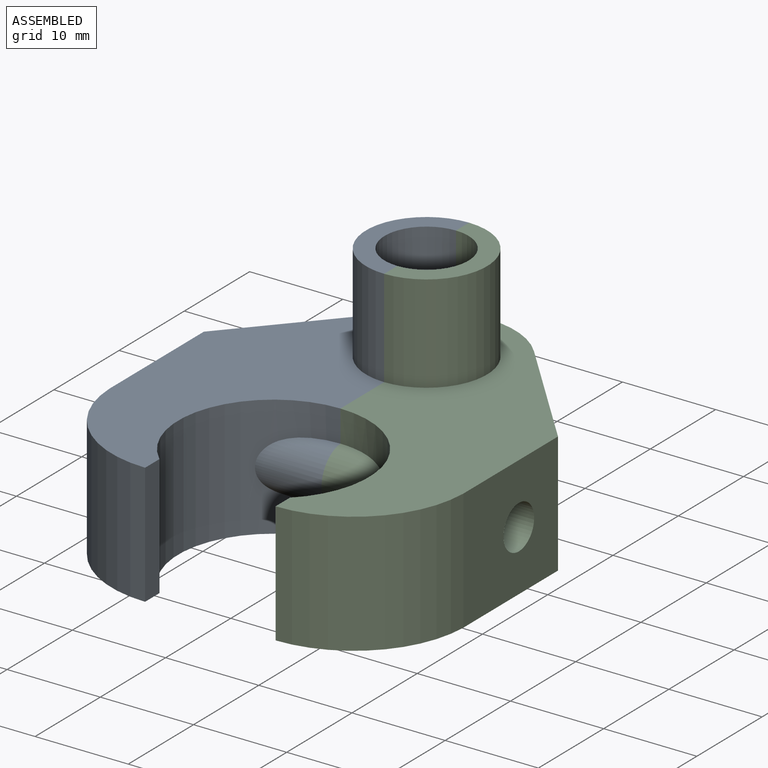
[diagram: assembled view]
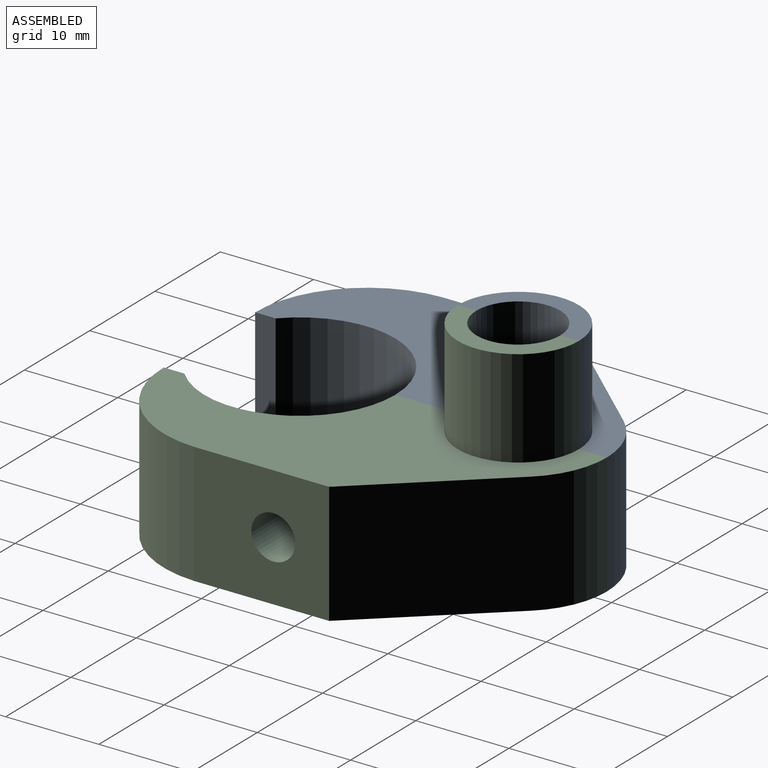
[diagram: assembled view, second angle]
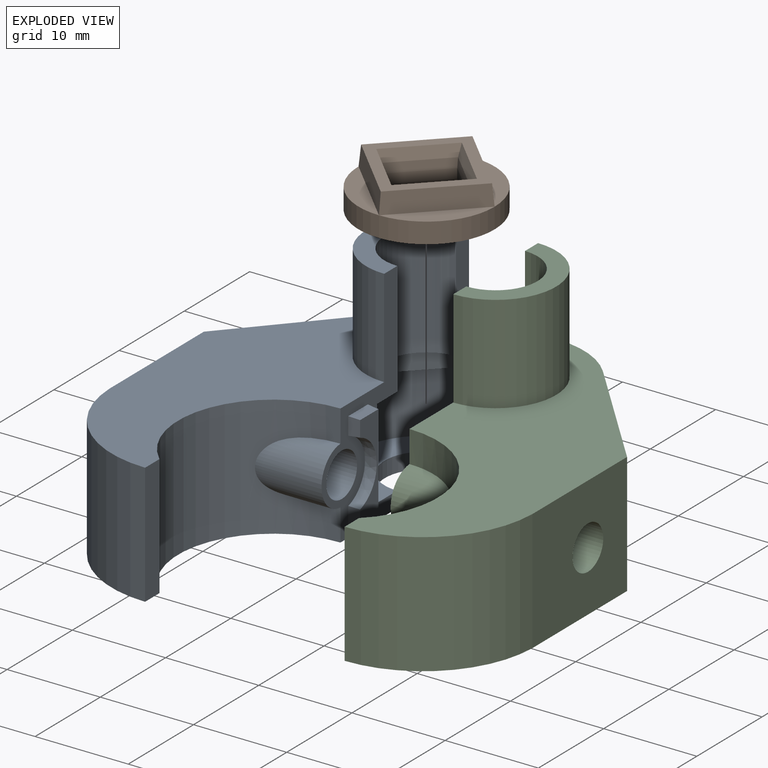
[diagram: exploded view]
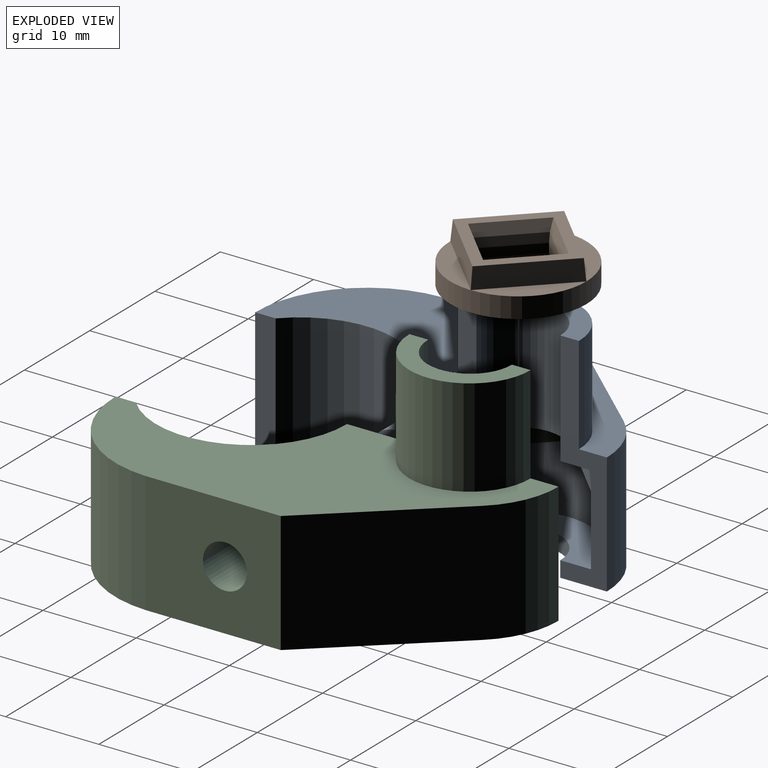
[diagram: exploded view, second angle]
ASSEMBLY  parts=3 mates=2
PART A: 37 faces, bbox 20.2x42.6x23.5 mm
  f0: plane 23.5x11.6mm, normal (1,0,0), area 80.1mm2, adj f1,f3,f15,f16,f17,f18,f20,f21
  f1: plane 7.8x7.8mm, normal (0.7,0.7,-0.09), area 24.1mm2, adj f0,f2,f22,f24,f25
  f2: plane 7.8x7.8mm, normal (0.7,-0.7,-0.09), area 24.1mm2, adj f1,f22,f24,f26,f29
  f3: cylinder r=4.5mm len=9mm, axis (0,0,-1), area 24mm2, adj f0,f18,f23,f29
  f4: plane 12x1.75mm, normal (0,-0.5,0.87), area 24.2mm2, adj f5,f9,f12,f19
  f5: plane 12x2.02mm, normal (0,-1,0), area 24.2mm2, adj f4,f6,f12,f19
  f6: plane 12x1.75mm, normal (0,-0.5,-0.87), area 24.2mm2, adj f5,f7,f12,f19
  f7: plane 12x1.75mm, normal (0,0.5,-0.87), area 24.2mm2, adj f6,f8,f12,f19
  f8: plane 12x2.02mm, normal (0,1,0), area 24.2mm2, adj f7,f9,f12,f19
  f9: plane 12x1.75mm, normal (0,0.5,0.87), area 24.2mm2, adj f4,f8,f12,f19
  f10: cylinder r=9.5mm len=13mm, axis (0,0,-1), area 103.9mm2, adj f11,f17,f18,f29
  f11: plane 13.33x13mm, normal (-0.75,0.67,0), area 232.5mm2, adj f10,f12,f17,f18
  f12: plane 14.5x13mm, normal (-1,0,0), area 177.9mm2, adj f4,f5,f6,f7,f8,f9,f11,f13
  f13: cylinder r=12.01mm len=13mm, axis (0,0,-1), area 240.4mm2, adj f12,f14,f17,f18
  f14: plane 13x2.2mm, normal (1,0,0), area 28.6mm2, adj f13,f15,f17,f18
  f15: cylinder r=10.25mm len=17.74mm, axis (0,0,-1), area 276.4mm2, adj f0,f14,f17,f18,f21
  f16: cylinder r=4.5mm len=12.2mm, axis (0,0,-1), area 172.5mm2, adj f0,f24,f28,f29
  f17: plane 42.64x19mm, normal (0,0,1), area 421.6mm2, adj f0,f10,f11,f12,f13,f14,f15,f27
  f18: plane 42.64x19mm, normal (0,0,-1), area 456.2mm2, adj f0,f3,f10,f11,f12,f13,f14,f15
  f19: plane 4.7x4.7mm, normal (1,0,0), area 6.7mm2, adj f4,f5,f6,f7,f8,f9,f20
  f20: cylinder r=2.35mm len=7mm, axis (1,0,0), area 103.4mm2, adj f0,f19
  f21: cylinder r=3.1mm len=7.15mm, axis (1,0,0), area 52.1mm2, adj f0,f15
  f22: cylinder r=7.8mm len=15.6mm, axis (0,0,1), area 181.4mm2, adj f0,f1,f2,f23,f25,f26,f29
  f23: plane 15.6x7.8mm, normal (0,0,1), area 63.8mm2, adj f0,f3,f22,f29
  f24: plane 15.2x7.6mm, normal (0,0,-1), area 26mm2, adj f0,f1,f2,f16,f29
  f25: plane 7.73x7.73mm, normal (0,0,-1), area 16.8mm2, adj f1,f22
  f26: plane 7.73x7.73mm, normal (0,0,-1), area 16.8mm2, adj f2,f22
  f27: cylinder r=6.5mm len=13mm, axis (0,0,-1), area 214.4mm2, adj f0,f17,f28,f29
  f28: plane 13x6.5mm, normal (0,0,1), area 34.6mm2, adj f0,f16,f27,f29
  f29: plane 23.5x5mm, normal (1,0,0), area 54.5mm2, adj f2,f3,f10,f16,f17,f18,f22,f23
  f30: plane 3x1.2mm, normal (0.09,0,1), area 3.5mm2, adj f0,f31,f35,f36
  f31: plane 1.89x1.2mm, normal (0.09,-1,0), area 2.2mm2, adj f0,f30,f32,f36
  f32: cone r=3.55mm half-angle=5deg, axis (1,0,0), area 11.1mm2, adj f0,f31,f33,f36
  f33: plane 1.89x1.2mm, normal (0.09,-1,0), area 2.2mm2, adj f0,f32,f34,f36
  f34: plane 3x1.2mm, normal (0.09,0,-1), area 3.5mm2, adj f0,f33,f35,f36
  f35: plane 10.6x1.2mm, normal (0.09,1,0), area 12.6mm2, adj f0,f30,f34,f36
  f36: plane 10.39x2.79mm, normal (1,0,0), area 16mm2, adj f30,f31,f32,f33,f34,f35
PART B: 27 faces, bbox 14.6x14.6x4.4 mm
  f0: plane 7.3x7.3mm, normal (0.7,0.7,0.09), area 22.4mm2, adj f1,f7,f8,f9
  f1: plane 7.3x7.3mm, normal (-0.7,0.7,0.09), area 22.4mm2, adj f0,f2,f8,f12
  f2: plane 7.3x7.3mm, normal (-0.7,-0.7,0.09), area 22.4mm2, adj f1,f7,f8,f11
  f3: plane 4.83x4.83mm, normal (0.7,-0.7,0.09), area 6.8mm2, adj f4,f6,f14,f20
  f4: plane 4.83x4.83mm, normal (-0.7,-0.7,0.09), area 6.8mm2, adj f3,f5,f13,f19
  f5: plane 4.83x4.83mm, normal (-0.7,0.7,0.09), area 6.8mm2, adj f4,f6,f17,f21
  f6: plane 4.83x4.83mm, normal (0.7,0.7,0.09), area 6.8mm2, adj f3,f5,f15,f22
  f7: plane 7.3x7.3mm, normal (0.7,-0.7,0.09), area 22.4mm2, adj f0,f2,f8,f10
  f8: plane 14.06x14.06mm, normal (0,0,1), area 40.5mm2, adj f0,f1,f2,f7,f19,f20,f21,f22
  f9: plane 7.3x7.3mm, normal (0,0,1), area 15.2mm2, adj f0,f16
  f10: plane 7.3x7.3mm, normal (0,0,1), area 15.2mm2, adj f7,f16
  f11: plane 7.3x7.3mm, normal (0,0,1), area 15.2mm2, adj f2,f16
  f12: plane 7.3x7.3mm, normal (0,0,1), area 15.2mm2, adj f1,f16
  f13: plane 4.7x4.7mm, normal (-0.71,-0.71,0), area 6.6mm2, adj f4,f14,f17,f25
  f14: plane 4.7x4.7mm, normal (0.71,-0.71,0), area 6.6mm2, adj f3,f13,f15,f23
  f15: plane 4.7x4.7mm, normal (0.71,0.71,0), area 6.6mm2, adj f6,f14,f17,f24
  f16: cylinder r=7.3mm len=14.6mm, axis (0,0,1), area 100.9mm2, adj f9,f10,f11,f12,f18
  f17: plane 4.7x4.7mm, normal (-0.71,0.71,0), area 6.6mm2, adj f5,f13,f15,f26
  f18: plane 14.6x14.6mm, normal (0,0,-1), area 114.9mm2, adj f16,f23,f24,f25,f26
  f19: plane 5.4x5.4mm, normal (-0.67,-0.67,0.32), area 9.1mm2, adj f4,f8,f20,f21
  f20: plane 5.4x5.4mm, normal (0.67,-0.67,0.32), area 9.1mm2, adj f3,f8,f19,f22
  f21: plane 5.4x5.4mm, normal (-0.67,0.67,0.32), area 9.1mm2, adj f5,f8,f19,f22
  f22: plane 5.4x5.4mm, normal (0.67,0.67,0.32), area 9.1mm2, adj f6,f8,f20,f21
  f23: plane 5.13x5.13mm, normal (0.69,-0.69,-0.24), area 8.6mm2, adj f14,f18,f24,f25
  f24: plane 5.13x5.13mm, normal (0.69,0.69,-0.24), area 8.6mm2, adj f15,f18,f23,f26
  f25: plane 5.13x5.13mm, normal (-0.69,-0.69,-0.24), area 8.6mm2, adj f13,f18,f23,f26
  f26: plane 5.13x5.13mm, normal (-0.69,0.69,-0.24), area 8.6mm2, adj f17,f18,f24,f25
PART C: 30 faces, bbox 19x42.6x23.5 mm
  f0: plane 23.5x11.6mm, normal (-1,0,0), area 74mm2, adj f1,f3,f4,f5,f6,f7,f8,f9
  f1: cylinder r=4.5mm len=9mm, axis (0,0,-1), area 24mm2, adj f0,f6,f10,f22
  f2: cylinder r=9.5mm len=13mm, axis (0,0,-1), area 103.9mm2, adj f5,f6,f19,f22
  f3: cylinder r=10.25mm len=17.74mm, axis (0,0,-1), area 276.4mm2, adj f0,f5,f6,f8,f16
  f4: cylinder r=4.5mm len=12.2mm, axis (0,0,-1), area 172.5mm2, adj f0,f11,f13,f22
  f5: plane 42.64x19mm, normal (0,0,1), area 421.6mm2, adj f0,f2,f3,f12,f16,f17,f18,f19
  f6: plane 42.64x19mm, normal (0,0,-1), area 456.2mm2, adj f0,f1,f2,f3,f16,f17,f18,f19
  f7: cylinder r=2.35mm len=19mm, axis (1,0,0), area 280.5mm2, adj f0,f18
  f8: cylinder r=3.1mm len=7.15mm, axis (1,0,0), area 52.1mm2, adj f0,f3
  f9: cylinder r=7.8mm len=15.6mm, axis (0,0,1), area 181.4mm2, adj f0,f10,f14,f15,f20,f21,f22
  f10: plane 15.6x7.8mm, normal (0,0,1), area 63.8mm2, adj f0,f1,f9,f22
  f11: plane 15.2x7.6mm, normal (0,0,-1), area 26mm2, adj f0,f4,f14,f15,f22
  f12: cylinder r=6.5mm len=13mm, axis (0,0,-1), area 214.4mm2, adj f0,f5,f13,f22
  f13: plane 13x6.5mm, normal (0,0,1), area 34.6mm2, adj f0,f4,f12,f22
  f14: plane 7.8x7.8mm, normal (-0.7,0.7,-0.09), area 24.1mm2, adj f0,f9,f11,f15,f20
  f15: plane 7.8x7.8mm, normal (-0.7,-0.7,-0.09), area 24.1mm2, adj f9,f11,f14,f21,f22
  f16: plane 13x2.2mm, normal (-1,0,0), area 28.6mm2, adj f3,f5,f6,f17
  f17: cylinder r=12.01mm len=13mm, axis (0,0,-1), area 240.4mm2, adj f5,f6,f16,f18
  f18: plane 14.5x13mm, normal (1,0,0), area 171.2mm2, adj f5,f6,f7,f17,f19
  f19: plane 13.33x13mm, normal (0.75,0.67,0), area 232.5mm2, adj f2,f5,f6,f18
  f20: plane 7.73x7.73mm, normal (0,0,-1), area 16.8mm2, adj f9,f14
  f21: plane 7.73x7.73mm, normal (0,0,-1), area 16.8mm2, adj f9,f15
  f22: plane 23.5x5mm, normal (-1,0,0), area 54.5mm2, adj f1,f2,f4,f5,f6,f9,f10,f11
  f23: plane 2.25x1.5mm, normal (0,1,0), area 3.4mm2, adj f0,f24,f28,f29
  f24: plane 3.4x1.5mm, normal (0,0,-1), area 5.1mm2, adj f0,f23,f25,f29
  f25: plane 11x1.5mm, normal (0,-1,0), area 16.5mm2, adj f0,f24,f26,f29
  f26: plane 3.4x1.5mm, normal (0,0,1), area 5.1mm2, adj f0,f25,f27,f29
  f27: plane 2.25x1.5mm, normal (0,1,0), area 3.4mm2, adj f0,f26,f28,f29
  f28: cylinder r=3.35mm len=6.51mm, axis (-1,0,0), area 13.4mm2, adj f0,f23,f27,f29
  f29: plane 11x3.4mm, normal (-1,0,0), area 25.1mm2, adj f23,f24,f25,f26,f27,f28
PLACE A at identity fixed
PLACE B t=(0,0,2.58)mm
PLACE C at identity
MATE fastened A.f29 <-> C.f22  axis (1,0,0) through (0,7.8,-4.8)mm
MATE slider A.f22 <-> B.f16  axis (0,0,1) through (0,0,3.23)mm
